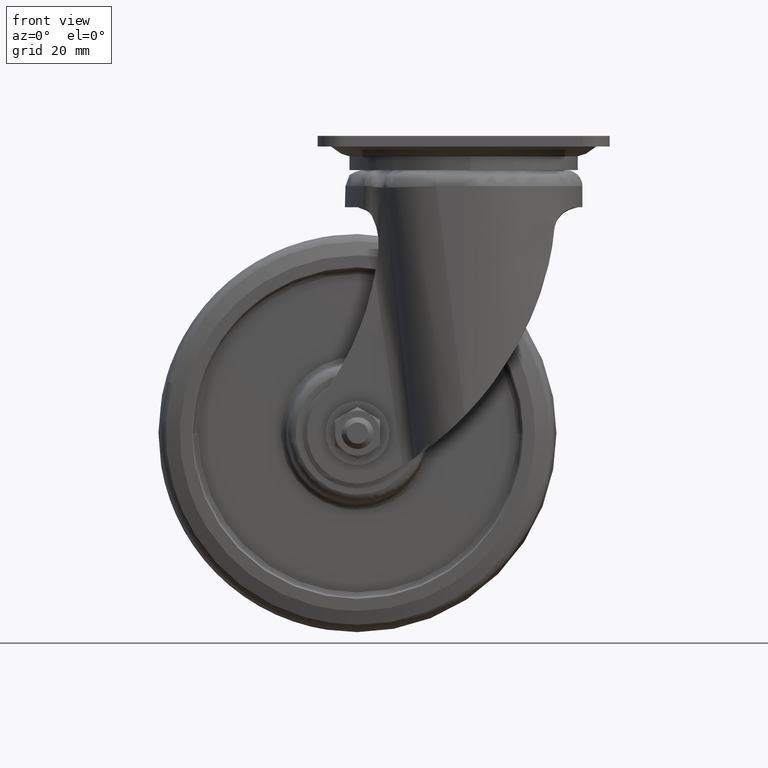
[diagram: clean part render]
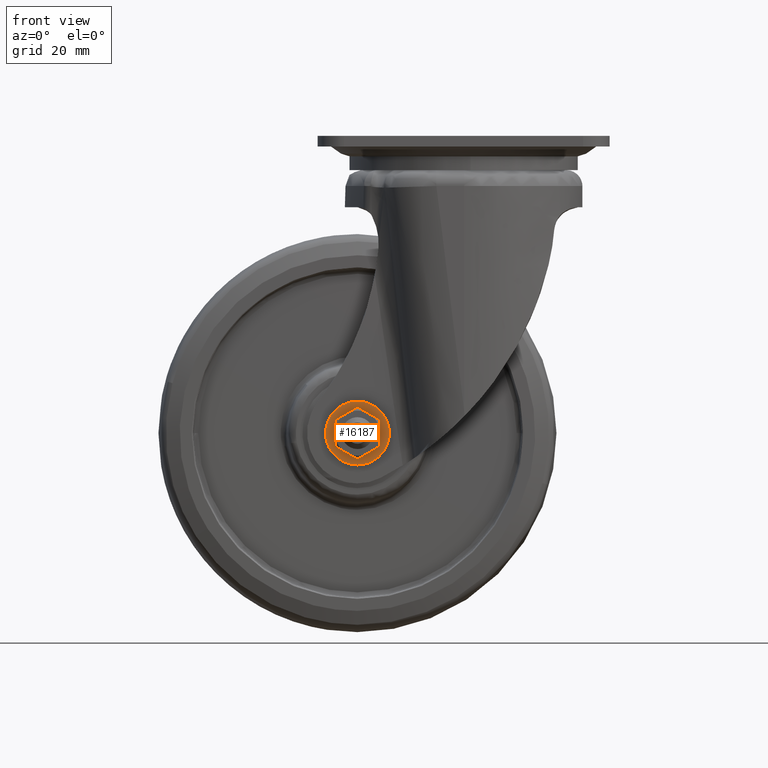
[diagram: same view with one face highlighted and labeled with its STEP entity id]
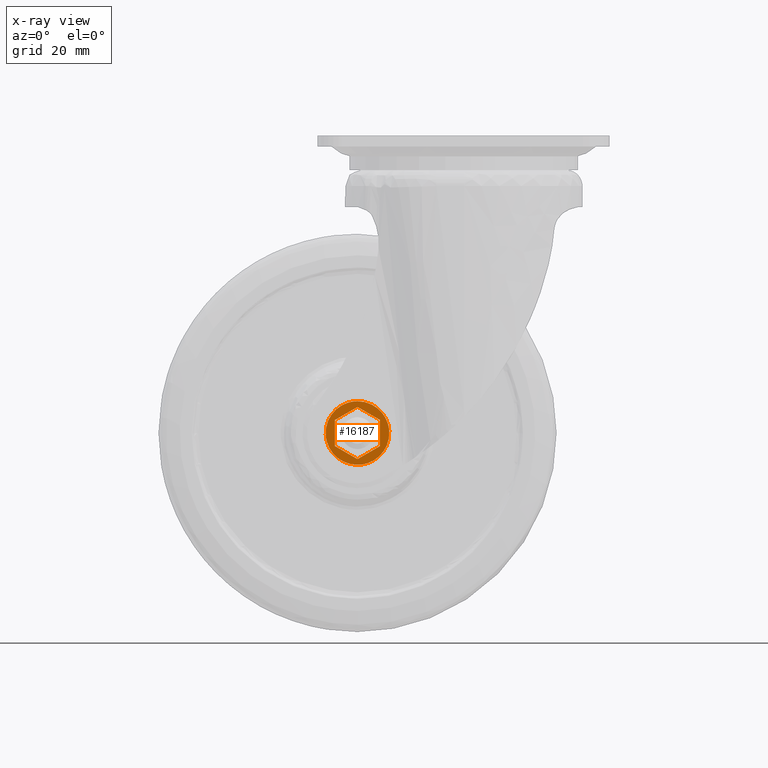
[diagram: x-ray of the same camera — body ghosted, the highlighted face saturated]
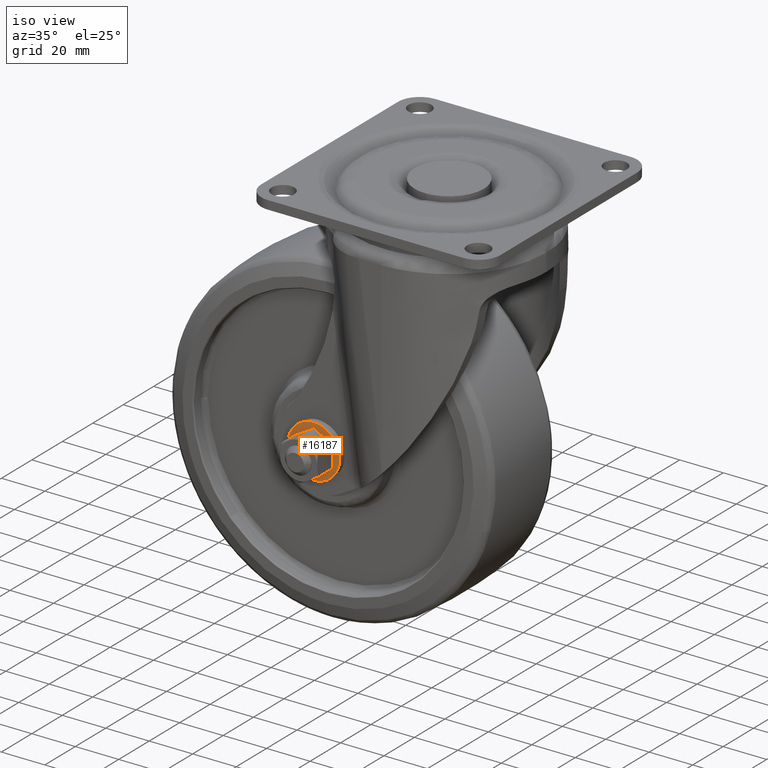
[diagram: same view with one face highlighted and labeled with its STEP entity id]
A machine part, front view. The second image highlights one B-rep face of the part: STEP entity #16187.
The next image is the same camera in x-ray: the body ghosted, the highlighted face saturated — about 0% of this face is hidden behind the body in this view.
A second angle (iso view) of the same face is appended — the face is thin or edge-on in the first view.
In plain terms, the highlighted face is a freeform B-spline surface patch.
Its self-contained STEP definition (entity closure, byte-faithful):
#15977=CARTESIAN_POINT('',(-31.500000000000000,-31.850282000000050,-107.092523000000000));
#15978=VERTEX_POINT('',#15977);
#15984=CARTESIAN_POINT('',(-40.0,-31.850282000000000,-102.185045000000000));
#15985=VERTEX_POINT('',#15984);
#15986=CARTESIAN_POINT('',(-31.500000000000000,-31.850282000000050,-107.092523000000000));
#15987=CARTESIAN_POINT('',(-40.0,-31.850282000000000,-102.185045000000000));
#15988=QUASI_UNIFORM_CURVE('',1,(#15986,#15987),.UNSPECIFIED.,.F.,.U.);
#15989=EDGE_CURVE('',#15978,#15985,#15988,.T.);
#16007=CARTESIAN_POINT('',(-48.500000000000000,-31.850282000000050,-107.092523000000000));
#16008=VERTEX_POINT('',#16007);
#16009=CARTESIAN_POINT('',(-40.0,-31.850282000000000,-102.185045000000000));
#16010=CARTESIAN_POINT('',(-48.500000000000000,-31.850282000000050,-107.092523000000000));
#16011=QUASI_UNIFORM_CURVE('',1,(#16009,#16010),.UNSPECIFIED.,.F.,.U.);
#16012=EDGE_CURVE('',#15985,#16008,#16011,.T.);
#16030=CARTESIAN_POINT('',(-48.500000000000000,-31.850282000000050,-116.907477000000200));
#16031=VERTEX_POINT('',#16030);
#16032=CARTESIAN_POINT('',(-48.500000000000000,-31.850282000000050,-107.092523000000000));
#16033=CARTESIAN_POINT('',(-48.500000000000000,-31.850282000000050,-116.907477000000200));
#16034=QUASI_UNIFORM_CURVE('',1,(#16032,#16033),.UNSPECIFIED.,.F.,.U.);
#16035=EDGE_CURVE('',#16008,#16031,#16034,.T.);
#16053=CARTESIAN_POINT('',(-40.0,-31.850282000000050,-121.814955000000000));
#16054=VERTEX_POINT('',#16053);
#16055=CARTESIAN_POINT('',(-48.500000000000000,-31.850282000000050,-116.907477000000200));
#16056=CARTESIAN_POINT('',(-40.0,-31.850282000000050,-121.814955000000000));
#16057=QUASI_UNIFORM_CURVE('',1,(#16055,#16056),.UNSPECIFIED.,.F.,.U.);
#16058=EDGE_CURVE('',#16031,#16054,#16057,.T.);
#16076=CARTESIAN_POINT('',(-31.500000000000000,-31.850282000000050,-116.907477000000200));
#16077=VERTEX_POINT('',#16076);
#16078=CARTESIAN_POINT('',(-40.0,-31.850282000000050,-121.814955000000000));
#16079=CARTESIAN_POINT('',(-31.500000000000000,-31.850282000000050,-116.907477000000200));
#16080=QUASI_UNIFORM_CURVE('',1,(#16078,#16079),.UNSPECIFIED.,.F.,.U.);
#16081=EDGE_CURVE('',#16054,#16077,#16080,.T.);
#16099=CARTESIAN_POINT('',(-31.500000000000000,-31.850282000000050,-116.907477000000200));
#16100=CARTESIAN_POINT('',(-31.500000000000000,-31.850282000000050,-107.092523000000000));
#16101=QUASI_UNIFORM_CURVE('',1,(#16099,#16100),.UNSPECIFIED.,.F.,.U.);
#16102=EDGE_CURVE('',#16077,#15978,#16101,.T.);
#16108=CARTESIAN_POINT('',(-53.198504647709989,-31.850282000000000,-98.801200046516655));
#16109=CARTESIAN_POINT('',(-53.198504647709989,-31.850282000000000,-125.198800597213510));
#16110=CARTESIAN_POINT('',(-26.801495781443471,-31.850282000000000,-98.801200046516655));
#16111=CARTESIAN_POINT('',(-26.801495781443471,-31.850282000000000,-125.198800597213510));
#16112=B_SPLINE_SURFACE_WITH_KNOTS('',1,1,((#16108,#16110),(#16109,#16111)),.UNSPECIFIED.,.F.,.F.,.U.,(2,2),(2,2),(0.0,26.397600550696868),(0.0,26.397008866266521),.UNSPECIFIED.);
#16113=CARTESIAN_POINT('',(-51.977618812225039,-31.850282000000000,-112.732562344532000));
#16114=VERTEX_POINT('',#16113);
#16115=CARTESIAN_POINT('',(-40.0,-31.850282000000000,-100.0));
#16116=VERTEX_POINT('',#16115);
#16117=CARTESIAN_POINT('',(-51.977618812225039,-31.850282000000007,-112.732562344531980));
#16118=CARTESIAN_POINT('',(-51.999999999983338,-31.850282000000004,-112.366623066419090));
#16119=CARTESIAN_POINT('',(-51.999999999983586,-31.850282000000000,-111.999999999999010));
#16120=CARTESIAN_POINT('',(-51.999999999992056,-31.850282000000007,-99.999999999999517));
#16121=CARTESIAN_POINT('',(-40.0,-31.850282000000000,-100.0));
#16129=(BOUNDED_CURVE()B_SPLINE_CURVE(2,(#16117,#16118,#16119,#16120,#16121),.UNSPECIFIED.,.F.,.U.)B_SPLINE_CURVE_WITH_KNOTS((3,2,3),(0.739333252228519,0.750000000000000,1.0),.UNSPECIFIED.)CURVE()GEOMETRIC_REPRESENTATION_ITEM()RATIONAL_B_SPLINE_CURVE((0.976072663170369,0.987503127643759,1.0,0.707106781186548,1.0))REPRESENTATION_ITEM(''));
#16130=EDGE_CURVE('',#16114,#16116,#16129,.T.);
#16131=ORIENTED_EDGE('',*,*,#16130,.F.);
#16132=CARTESIAN_POINT('',(-40.0,-31.850282000000000,-124.0));
#16133=VERTEX_POINT('',#16132);
#16134=CARTESIAN_POINT('',(-40.0,-31.850282000000000,-124.0));
#16135=CARTESIAN_POINT('',(-51.288491810017305,-31.850281999999996,-123.999999999999490));
#16136=CARTESIAN_POINT('',(-51.977618812225039,-31.850282000000004,-112.732562344532000));
#16144=(BOUNDED_CURVE()B_SPLINE_CURVE(2,(#16134,#16135,#16136),.UNSPECIFIED.,.F.,.U.)B_SPLINE_CURVE_WITH_KNOTS((3,3),(0.500000000000000,0.739333252228519),.UNSPECIFIED.)CURVE()GEOMETRIC_REPRESENTATION_ITEM()RATIONAL_B_SPLINE_CURVE((1.0,0.719603653542789,0.976072663170369))REPRESENTATION_ITEM(''));
#16145=EDGE_CURVE('',#16133,#16114,#16144,.T.);
#16146=ORIENTED_EDGE('',*,*,#16145,.F.);
#16147=CARTESIAN_POINT('',(-28.022381187774968,-31.850282000000000,-111.267437655468000));
#16148=VERTEX_POINT('',#16147);
#16149=CARTESIAN_POINT('',(-28.022381187774972,-31.850282000000000,-111.267437655468020));
#16150=CARTESIAN_POINT('',(-28.000000000016680,-31.850282000000007,-111.633376933580950));
#16151=CARTESIAN_POINT('',(-28.000000000016421,-31.850282000000000,-112.000000000000990));
#16152=CARTESIAN_POINT('',(-28.000000000007962,-31.850282000000007,-124.000000000000510));
#16153=CARTESIAN_POINT('',(-40.0,-31.850282000000000,-124.0));
#16161=(BOUNDED_CURVE()B_SPLINE_CURVE(2,(#16149,#16150,#16151,#16152,#16153),.UNSPECIFIED.,.F.,.U.)B_SPLINE_CURVE_WITH_KNOTS((3,2,3),(0.239333252228519,0.250000000000000,0.500000000000000),.UNSPECIFIED.)CURVE()GEOMETRIC_REPRESENTATION_ITEM()RATIONAL_B_SPLINE_CURVE((0.976072663170368,0.987503127643758,1.0,0.707106781186548,1.0))REPRESENTATION_ITEM(''));
#16162=EDGE_CURVE('',#16148,#16133,#16161,.T.);
#16163=ORIENTED_EDGE('',*,*,#16162,.F.);
#16164=CARTESIAN_POINT('',(-40.0,-31.850282000000000,-100.0));
#16165=CARTESIAN_POINT('',(-28.711508189982720,-31.850282000000007,-100.000000000000500));
#16166=CARTESIAN_POINT('',(-28.022381187774965,-31.850282000000004,-111.267437655467990));
#16174=(BOUNDED_CURVE()B_SPLINE_CURVE(2,(#16164,#16165,#16166),.UNSPECIFIED.,.F.,.U.)B_SPLINE_CURVE_WITH_KNOTS((3,3),(0.0,0.239333252228519),.UNSPECIFIED.)CURVE()GEOMETRIC_REPRESENTATION_ITEM()RATIONAL_B_SPLINE_CURVE((1.0,0.719603653542789,0.976072663170369))REPRESENTATION_ITEM(''));
#16175=EDGE_CURVE('',#16116,#16148,#16174,.T.);
#16176=ORIENTED_EDGE('',*,*,#16175,.F.);
#16177=EDGE_LOOP('',(#16131,#16146,#16163,#16176));
#16178=FACE_OUTER_BOUND('',#16177,.T.);
#16179=ORIENTED_EDGE('',*,*,#16035,.F.);
#16180=ORIENTED_EDGE('',*,*,#16012,.F.);
#16181=ORIENTED_EDGE('',*,*,#15989,.F.);
#16182=ORIENTED_EDGE('',*,*,#16102,.F.);
#16183=ORIENTED_EDGE('',*,*,#16081,.F.);
#16184=ORIENTED_EDGE('',*,*,#16058,.F.);
#16185=EDGE_LOOP('',(#16179,#16180,#16181,#16182,#16183,#16184));
#16186=FACE_BOUND('',#16185,.T.);
#16187=ADVANCED_FACE('',(#16178,#16186),#16112,.T.);